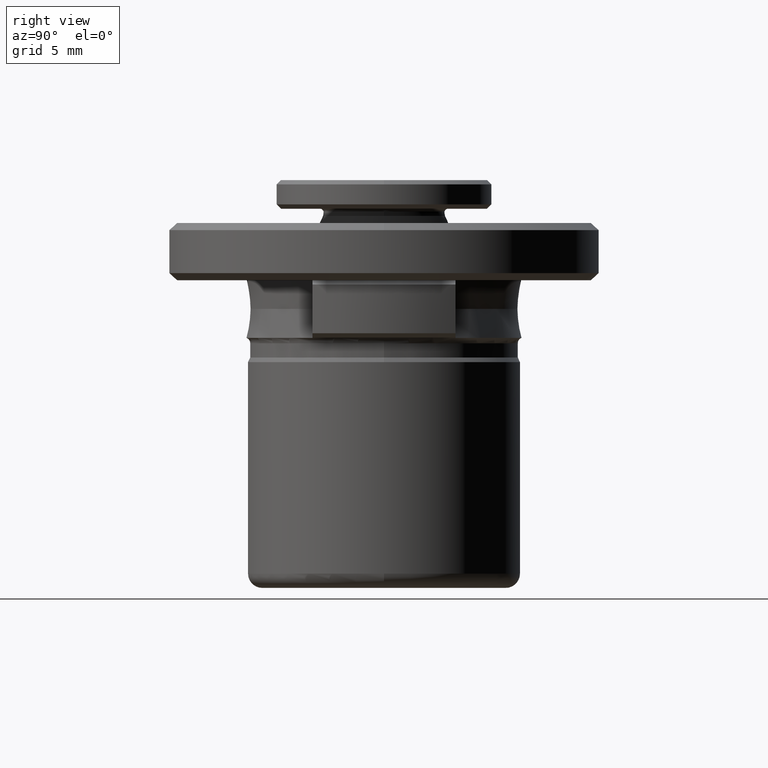
[diagram: clean part render]
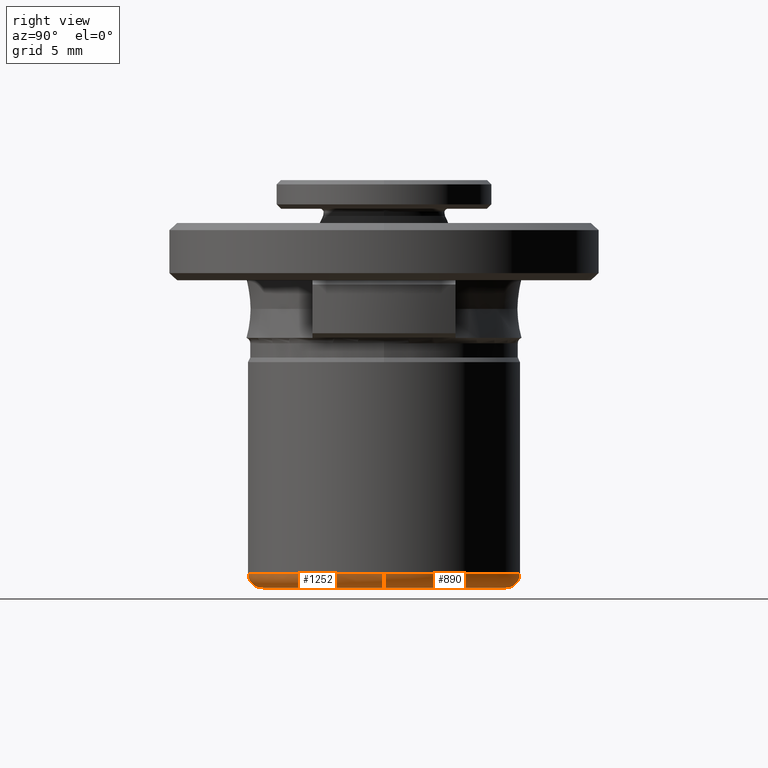
[diagram: same view with one multi-face feature highlighted, each face labeled with its STEP entity id]
A machine part, right view. The highlighted faces form ONE feature: a constant-radius fillet chain: 2 tangent blend faces with common blend radius 1 mm. The faces share edges in the B-rep.
Their STEP definitions:
[1] entity #1252 (Torus):
#4 = CARTESIAN_POINT ( 'NONE',  ( 0.0000000000000000000, 2.364620801796248300E-016, -11.75000000000000000 ) ) ;
#6 = CARTESIAN_POINT ( 'NONE',  ( 0.0000000000000000000, -9.500000000000000000, -11.75000000000000000 ) ) ;
#23 = VERTEX_POINT ( 'NONE', #2048 ) ;
#85 = DIRECTION ( 'NONE',  ( 1.224646799147353200E-016, 1.000000000000000000, -0.0000000000000000000 ) ) ;
#173 = DIRECTION ( 'NONE',  ( 1.000000000000000000, 0.0000000000000000000, 0.0000000000000000000 ) ) ;
#212 = ORIENTED_EDGE ( 'NONE', *, *, #2027, .F. ) ;
#254 = EDGE_LOOP ( 'NONE', ( #212, #915, #276, #1529, #359 ) ) ;
#273 = VERTEX_POINT ( 'NONE', #1813 ) ;
#276 = ORIENTED_EDGE ( 'NONE', *, *, #1644, .T. ) ;
#280 = DIRECTION ( 'NONE',  ( 1.000000000000000000, 0.0000000000000000000, 0.0000000000000000000 ) ) ;
#297 = CIRCLE ( 'NONE', #1268, 1.000000000000000900 ) ;
#359 = ORIENTED_EDGE ( 'NONE', *, *, #1516, .F. ) ;
#377 = CIRCLE ( 'NONE', #694, 9.500000000000000000 ) ;
#508 = CIRCLE ( 'NONE', #1017, 9.500000000000000000 ) ;
#665 = CARTESIAN_POINT ( 'NONE',  ( 8.500000000000000000, 2.364620801796248300E-016, -11.75000000000000000 ) ) ;
#694 = AXIS2_PLACEMENT_3D ( 'NONE', #4, #1221, #173 ) ;
#713 = AXIS2_PLACEMENT_3D ( 'NONE', #1879, #864, #2046 ) ;
#800 = EDGE_CURVE ( 'NONE', #811, #23, #1219, .T. ) ;
#811 = VERTEX_POINT ( 'NONE', #1704 ) ;
#824 = TOROIDAL_SURFACE ( 'NONE', #1097, 8.500000000000000000, 1.000000000000000000 ) ;
#847 = DIRECTION ( 'NONE',  ( 0.0000000000000000000, 0.0000000000000000000, -1.000000000000000000 ) ) ;
#850 = CIRCLE ( 'NONE', #1833, 1.000000000000000900 ) ;
#864 = DIRECTION ( 'NONE',  ( -0.0000000000000000000, -0.0000000000000000000, -1.000000000000000000 ) ) ;
#915 = ORIENTED_EDGE ( 'NONE', *, *, #800, .F. ) ;
#943 = CARTESIAN_POINT ( 'NONE',  ( 0.0000000000000000000, 2.364620801796248300E-016, -11.75000000000000000 ) ) ;
#947 = VERTEX_POINT ( 'NONE', #1071 ) ;
#984 = DIRECTION ( 'NONE',  ( 0.0000000000000000000, 0.0000000000000000000, 1.000000000000000000 ) ) ;
#1014 = EDGE_CURVE ( 'NONE', #1744, #273, #508, .T. ) ;
#1017 = AXIS2_PLACEMENT_3D ( 'NONE', #943, #2119, #1117 ) ;
#1071 = CARTESIAN_POINT ( 'NONE',  ( -9.500000000000001800, 1.399876539369610000E-015, -11.75000000000000000 ) ) ;
#1097 = AXIS2_PLACEMENT_3D ( 'NONE', #1985, #984, #280 ) ;
#1117 = DIRECTION ( 'NONE',  ( 1.000000000000000000, 0.0000000000000000000, 0.0000000000000000000 ) ) ;
#1133 = CARTESIAN_POINT ( 'NONE',  ( -8.500000000000000000, 1.277411859454874900E-015, -11.75000000000000000 ) ) ;
#1219 = CIRCLE ( 'NONE', #713, 8.500000000000000000 ) ;
#1221 = DIRECTION ( 'NONE',  ( 0.0000000000000000000, 0.0000000000000000000, 1.000000000000000000 ) ) ;
#1252 = ADVANCED_FACE ( 'NONE', ( #1564 ), #824, .T. ) ;
#1268 = AXIS2_PLACEMENT_3D ( 'NONE', #1133, #85, #1300 ) ;
#1300 = DIRECTION ( 'NONE',  ( -1.000000000000000000, 1.224646799147351500E-016, 0.0000000000000000000 ) ) ;
#1516 = EDGE_CURVE ( 'NONE', #947, #1744, #377, .T. ) ;
#1529 = ORIENTED_EDGE ( 'NONE', *, *, #1014, .F. ) ;
#1564 = FACE_OUTER_BOUND ( 'NONE', #254, .T. ) ;
#1644 = EDGE_CURVE ( 'NONE', #811, #273, #850, .T. ) ;
#1704 = CARTESIAN_POINT ( 'NONE',  ( 8.500000000000000000, 2.364620801796248300E-016, -12.75000000000000200 ) ) ;
#1744 = VERTEX_POINT ( 'NONE', #6 ) ;
#1813 = CARTESIAN_POINT ( 'NONE',  ( 9.500000000000001800, 2.364620801796248300E-016, -11.75000000000000000 ) ) ;
#1833 = AXIS2_PLACEMENT_3D ( 'NONE', #665, #1860, #847 ) ;
#1860 = DIRECTION ( 'NONE',  ( 0.0000000000000000000, -1.000000000000000000, 0.0000000000000000000 ) ) ;
#1879 = CARTESIAN_POINT ( 'NONE',  ( 0.0000000000000000000, 2.364620801796248300E-016, -12.75000000000000200 ) ) ;
#1985 = CARTESIAN_POINT ( 'NONE',  ( 0.0000000000000000000, 2.364620801796248300E-016, -11.75000000000000000 ) ) ;
#2027 = EDGE_CURVE ( 'NONE', #23, #947, #297, .T. ) ;
#2046 = DIRECTION ( 'NONE',  ( 1.000000000000000000, 0.0000000000000000000, 0.0000000000000000000 ) ) ;
#2048 = CARTESIAN_POINT ( 'NONE',  ( -8.500000000000000000, 1.338644199412242400E-015, -12.75000000000000200 ) ) ;
#2119 = DIRECTION ( 'NONE',  ( 0.0000000000000000000, 0.0000000000000000000, 1.000000000000000000 ) ) ;
[2] entity #890 (Torus):
#7 = CIRCLE ( 'NONE', #1807, 8.500000000000000000 ) ;
#23 = VERTEX_POINT ( 'NONE', #2048 ) ;
#28 = DIRECTION ( 'NONE',  ( 0.0000000000000000000, 0.0000000000000000000, 1.000000000000000000 ) ) ;
#53 = CARTESIAN_POINT ( 'NONE',  ( 0.0000000000000000000, 2.364620801796248300E-016, -11.75000000000000000 ) ) ;
#85 = DIRECTION ( 'NONE',  ( 1.224646799147353200E-016, 1.000000000000000000, -0.0000000000000000000 ) ) ;
#176 = TOROIDAL_SURFACE ( 'NONE', #2073, 8.500000000000000000, 1.000000000000000000 ) ;
#215 = DIRECTION ( 'NONE',  ( 1.000000000000000000, 0.0000000000000000000, 0.0000000000000000000 ) ) ;
#216 = AXIS2_PLACEMENT_3D ( 'NONE', #53, #1261, #215 ) ;
#223 = ORIENTED_EDGE ( 'NONE', *, *, #2027, .T. ) ;
#273 = VERTEX_POINT ( 'NONE', #1813 ) ;
#297 = CIRCLE ( 'NONE', #1268, 1.000000000000000900 ) ;
#645 = AXIS2_PLACEMENT_3D ( 'NONE', #1890, #876, #2059 ) ;
#665 = CARTESIAN_POINT ( 'NONE',  ( 8.500000000000000000, 2.364620801796248300E-016, -11.75000000000000000 ) ) ;
#679 = CARTESIAN_POINT ( 'NONE',  ( 1.163414459189985500E-015, 9.500000000000000000, -11.75000000000000000 ) ) ;
#723 = CARTESIAN_POINT ( 'NONE',  ( 0.0000000000000000000, 2.364620801796248300E-016, -11.75000000000000000 ) ) ;
#747 = CIRCLE ( 'NONE', #645, 9.500000000000000000 ) ;
#771 = CARTESIAN_POINT ( 'NONE',  ( 0.0000000000000000000, 2.364620801796248300E-016, -12.75000000000000200 ) ) ;
#811 = VERTEX_POINT ( 'NONE', #1704 ) ;
#847 = DIRECTION ( 'NONE',  ( 0.0000000000000000000, 0.0000000000000000000, -1.000000000000000000 ) ) ;
#850 = CIRCLE ( 'NONE', #1833, 1.000000000000000900 ) ;
#876 = DIRECTION ( 'NONE',  ( 0.0000000000000000000, 0.0000000000000000000, 1.000000000000000000 ) ) ;
#890 = ADVANCED_FACE ( 'NONE', ( #1497 ), #176, .T. ) ;
#946 = DIRECTION ( 'NONE',  ( 1.000000000000000000, 0.0000000000000000000, 0.0000000000000000000 ) ) ;
#947 = VERTEX_POINT ( 'NONE', #1071 ) ;
#1002 = ORIENTED_EDGE ( 'NONE', *, *, #1889, .F. ) ;
#1071 = CARTESIAN_POINT ( 'NONE',  ( -9.500000000000001800, 1.399876539369610000E-015, -11.75000000000000000 ) ) ;
#1107 = EDGE_LOOP ( 'NONE', ( #1947, #223, #2148, #1002, #1242 ) ) ;
#1133 = CARTESIAN_POINT ( 'NONE',  ( -8.500000000000000000, 1.277411859454874900E-015, -11.75000000000000000 ) ) ;
#1145 = EDGE_CURVE ( 'NONE', #23, #811, #7, .T. ) ;
#1242 = ORIENTED_EDGE ( 'NONE', *, *, #1644, .F. ) ;
#1261 = DIRECTION ( 'NONE',  ( 0.0000000000000000000, 0.0000000000000000000, 1.000000000000000000 ) ) ;
#1268 = AXIS2_PLACEMENT_3D ( 'NONE', #1133, #85, #1300 ) ;
#1300 = DIRECTION ( 'NONE',  ( -1.000000000000000000, 1.224646799147351500E-016, 0.0000000000000000000 ) ) ;
#1377 = CIRCLE ( 'NONE', #216, 9.500000000000000000 ) ;
#1400 = DIRECTION ( 'NONE',  ( 1.000000000000000000, 0.0000000000000000000, 0.0000000000000000000 ) ) ;
#1442 = VERTEX_POINT ( 'NONE', #679 ) ;
#1497 = FACE_OUTER_BOUND ( 'NONE', #1107, .T. ) ;
#1644 = EDGE_CURVE ( 'NONE', #811, #273, #850, .T. ) ;
#1704 = CARTESIAN_POINT ( 'NONE',  ( 8.500000000000000000, 2.364620801796248300E-016, -12.75000000000000200 ) ) ;
#1736 = EDGE_CURVE ( 'NONE', #1442, #947, #747, .T. ) ;
#1807 = AXIS2_PLACEMENT_3D ( 'NONE', #771, #1955, #946 ) ;
#1813 = CARTESIAN_POINT ( 'NONE',  ( 9.500000000000001800, 2.364620801796248300E-016, -11.75000000000000000 ) ) ;
#1833 = AXIS2_PLACEMENT_3D ( 'NONE', #665, #1860, #847 ) ;
#1860 = DIRECTION ( 'NONE',  ( 0.0000000000000000000, -1.000000000000000000, 0.0000000000000000000 ) ) ;
#1889 = EDGE_CURVE ( 'NONE', #273, #1442, #1377, .T. ) ;
#1890 = CARTESIAN_POINT ( 'NONE',  ( 0.0000000000000000000, 2.364620801796248300E-016, -11.75000000000000000 ) ) ;
#1947 = ORIENTED_EDGE ( 'NONE', *, *, #1145, .F. ) ;
#1955 = DIRECTION ( 'NONE',  ( -0.0000000000000000000, -0.0000000000000000000, -1.000000000000000000 ) ) ;
#2027 = EDGE_CURVE ( 'NONE', #23, #947, #297, .T. ) ;
#2048 = CARTESIAN_POINT ( 'NONE',  ( -8.500000000000000000, 1.338644199412242400E-015, -12.75000000000000200 ) ) ;
#2059 = DIRECTION ( 'NONE',  ( 1.000000000000000000, 0.0000000000000000000, 0.0000000000000000000 ) ) ;
#2073 = AXIS2_PLACEMENT_3D ( 'NONE', #723, #28, #1400 ) ;
#2148 = ORIENTED_EDGE ( 'NONE', *, *, #1736, .F. ) ;